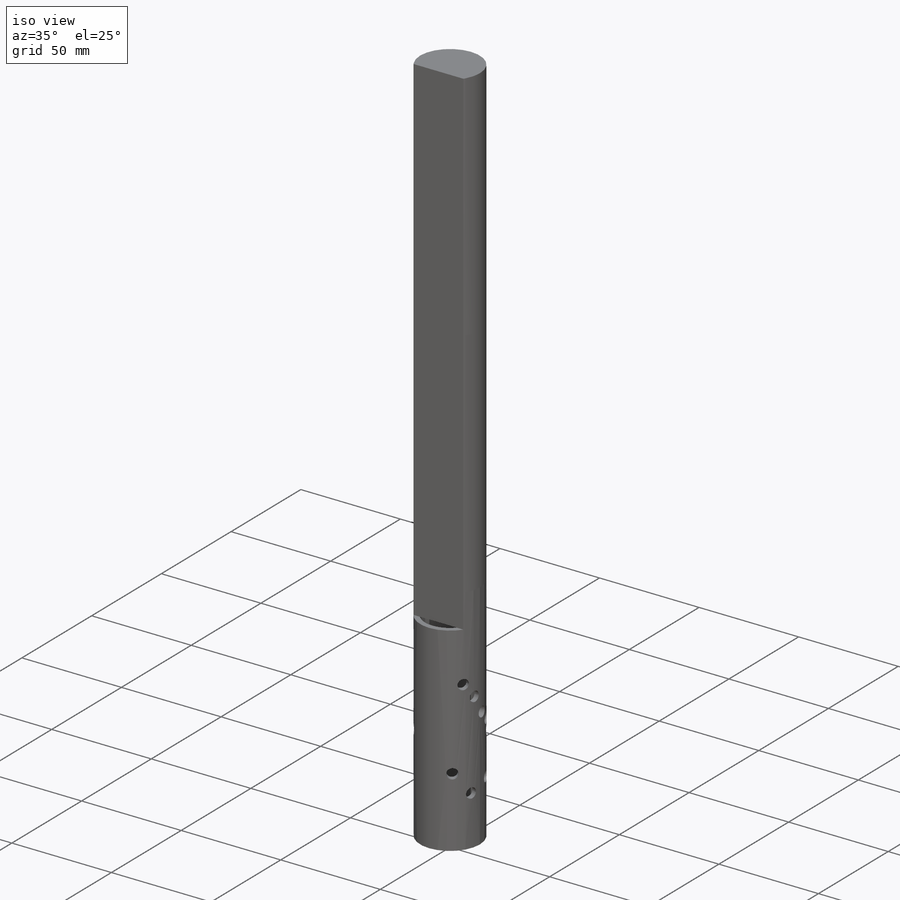
[diagram: iso view]
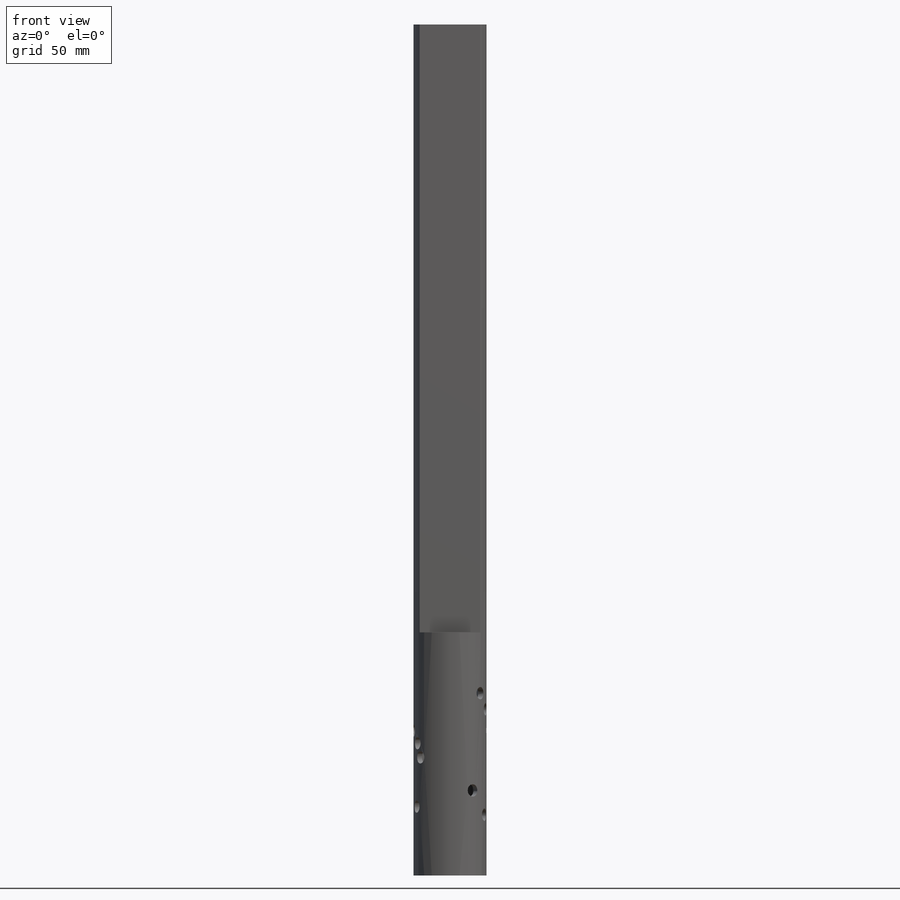
[diagram: front view]
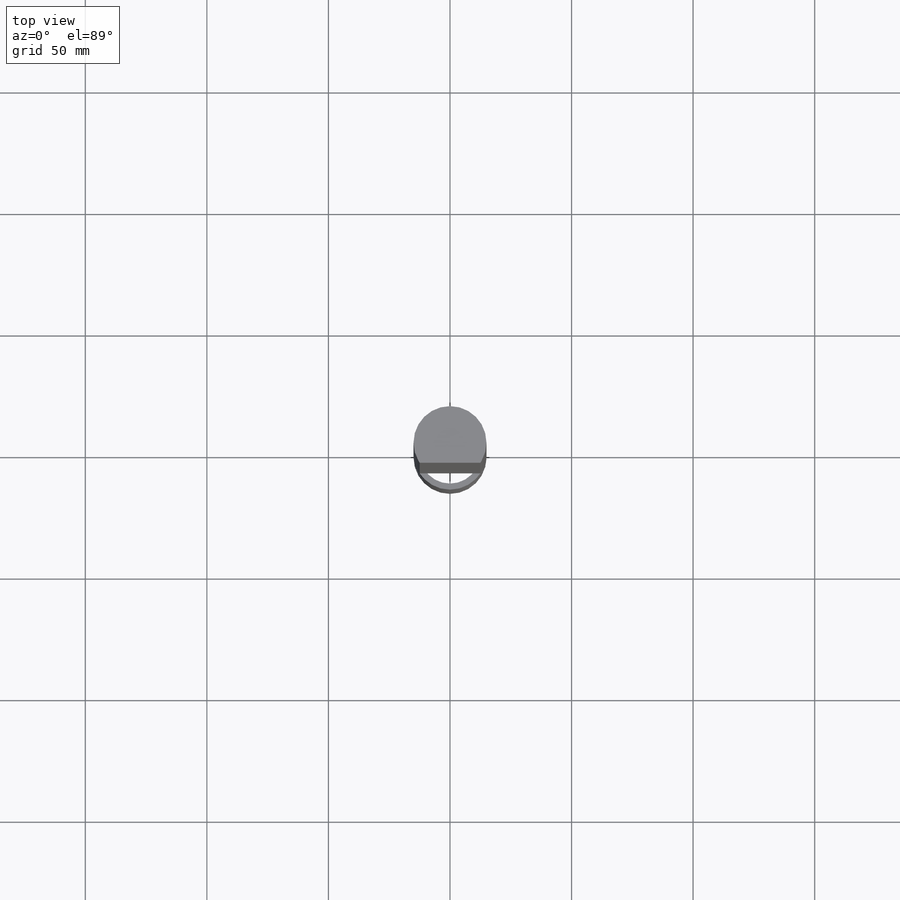
[diagram: top view]
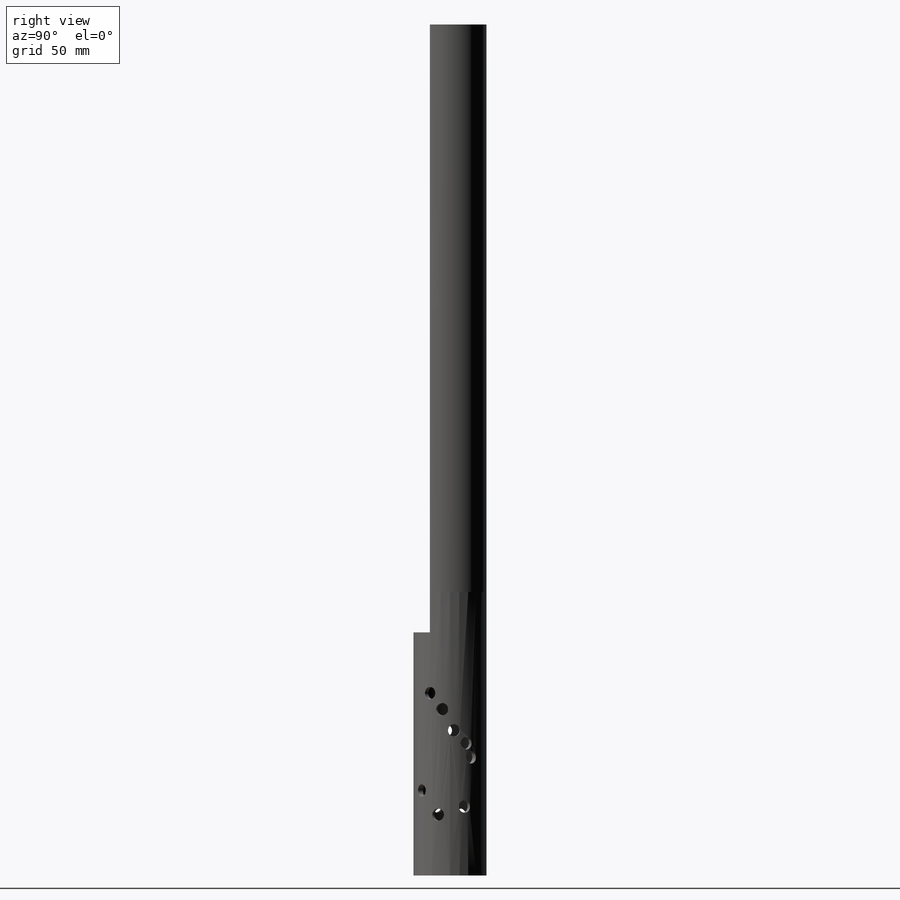
[diagram: right view]
SOLIDWORKS PART (.sldprt)
format: sldprt  version: not decoded by parser v0  size: 319,488 bytes
history: native  units: mm
features: sketch x4, extrude x2, material x1, hole x1 (+12 scaffold rows collapsed)
feature tree (20):
  scaffold x12  (default folders/planes/origin — collapsed)
  material  "Material <not specified>"
  sketch  "Sketch1"  dims[D1=25.0mm D2=30.0mm D3=25.0mm D4=~8.291562mm]
  extrude  "Boss-Extrude1"  Depth=100mm
  sketch  "Sketch5"  dims[c1.D2=~58.309519mm c1.D1=30.0mm c2.D1=25.0mm c2.D2=12.5mm c2.D3=25.0mm c3.D2=25.0mm]
  extrude  "Boss-Extrude2"  Depth=250mm
  hole  "#8 (0.199) Diameter Hole1"  Diameter=5.0546mm Depth=34.758142mm
  sketch  "3DSketch1"  dims[c1.D1=~20.338997mm c1.D3=30.0mm c1.D2=25.0mm c2.D1=25.0mm c2.D3=~11.309012mm c2.D4=~15.546234mm c2.D5=5.0mm c3.D3=~11.955596mm c3.D4=~11.955596mm c4.D3=0.0mm c4.D4=5.0mm c4.D5=10.0mm c4.D6=15.0mm c4.D7=17.0mm c4.D8=~17.831854mm c4.D9=27.0mm c5.D8=20.0mm]
  sketch  "Sketch3"  dims[hole-wizard template sketch: 60 standard entries collapsed; hole parameters kept: c18.Thru Hole Depth=~34.758142mm]
decode coverage: 7 of 7 modeling features carry decoded parameters
note: ~ marks probable driven/reference dimensions
note: suppression state not decoded; provenance and decode notes live in map.json
